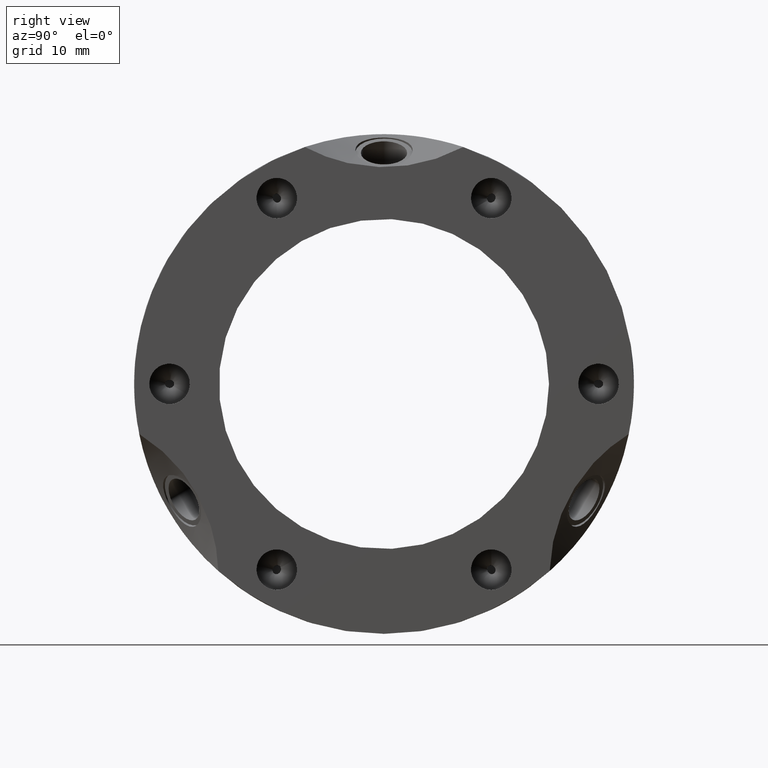
[diagram: clean part render]
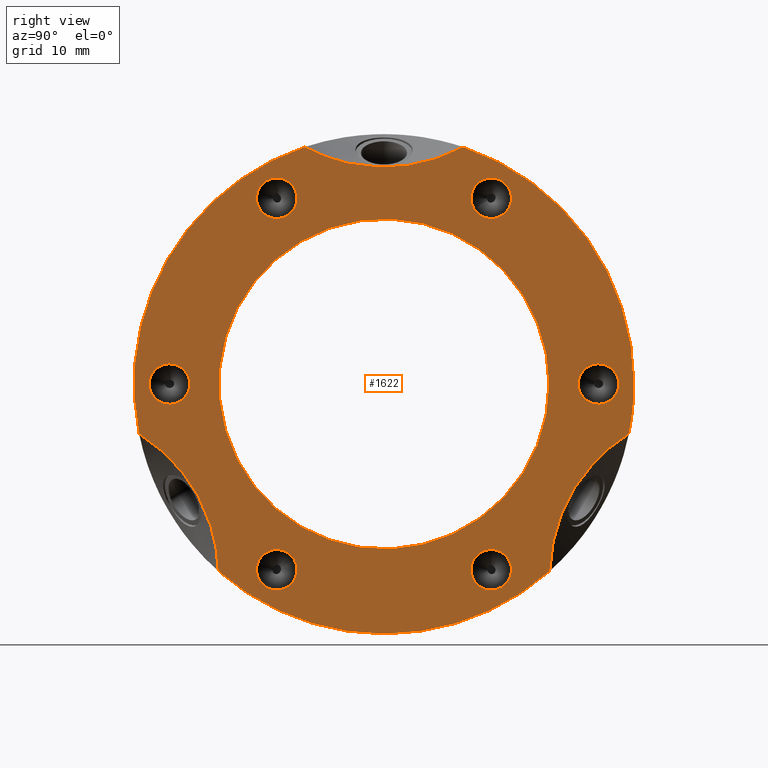
[diagram: same view with one face highlighted and labeled with its STEP entity id]
A machine part, right view. The second image highlights one B-rep face of the part: STEP entity #1622.
In plain terms, the highlighted planar face has unit normal (1, 0, 0).
Its self-contained STEP definition (entity closure, byte-faithful):
#131=CARTESIAN_POINT('',(19.999999999999993,9.513045381863465,18.627077936095983));
#132=VERTEX_POINT('',#131);
#133=CARTESIAN_POINT('',(19.999999999999993,11.375000000000009,19.702077936095979));
#134=DIRECTION('',(-1.0,0.0,0.0));
#135=DIRECTION('',(0.0,-0.866025403784439,-0.499999999999999));
#136=AXIS2_PLACEMENT_3D('',#133,#134,#135);
#137=CIRCLE('',#136,2.15);
#138=EDGE_CURVE('',#132,#132,#137,.T.);
#287=CARTESIAN_POINT('',(19.999999999999993,20.888045381863456,1.075));
#288=VERTEX_POINT('',#287);
#289=CARTESIAN_POINT('',(19.999999999999993,22.750000000000004,0.0));
#290=DIRECTION('',(-1.0,0.0,0.0));
#291=DIRECTION('',(0.0,-0.866025403784438,0.500000000000001));
#292=AXIS2_PLACEMENT_3D('',#289,#290,#291);
#293=CIRCLE('',#292,2.15);
#294=EDGE_CURVE('',#288,#288,#293,.T.);
#443=CARTESIAN_POINT('',(19.999999999999993,11.375000000000009,-17.55207793609598));
#444=VERTEX_POINT('',#443);
#445=CARTESIAN_POINT('',(19.999999999999993,11.375000000000011,-19.702077936095979));
#446=DIRECTION('',(-1.0,0.0,0.0));
#447=DIRECTION('',(0.0,0.0,1.0));
#448=AXIS2_PLACEMENT_3D('',#445,#446,#447);
#449=CIRCLE('',#448,2.15);
#450=EDGE_CURVE('',#444,#444,#449,.T.);
#599=CARTESIAN_POINT('',(19.999999999999993,-9.513045381863453,-18.627077936095983));
#600=VERTEX_POINT('',#599);
#601=CARTESIAN_POINT('',(19.999999999999993,-11.374999999999996,-19.702077936095986));
#602=DIRECTION('',(-1.0,0.0,0.0));
#603=DIRECTION('',(0.0,0.866025403784439,0.5));
#604=AXIS2_PLACEMENT_3D('',#601,#602,#603);
#605=CIRCLE('',#604,2.15);
#606=EDGE_CURVE('',#600,#600,#605,.T.);
#755=CARTESIAN_POINT('',(19.999999999999993,-20.888045381863456,-1.075000000000008));
#756=VERTEX_POINT('',#755);
#757=CARTESIAN_POINT('',(19.999999999999993,-22.750000000000004,-7.771561E-015));
#758=DIRECTION('',(-1.0,0.0,0.0));
#759=DIRECTION('',(0.0,0.866025403784439,-0.5));
#760=AXIS2_PLACEMENT_3D('',#757,#758,#759);
#761=CIRCLE('',#760,2.15);
#762=EDGE_CURVE('',#756,#756,#761,.T.);
#911=CARTESIAN_POINT('',(19.999999999999993,-11.375000000000011,17.552077936095976));
#912=VERTEX_POINT('',#911);
#913=CARTESIAN_POINT('',(19.999999999999993,-11.375000000000011,19.702077936095975));
#914=DIRECTION('',(-1.0,0.0,0.0));
#915=DIRECTION('',(0.0,0.0,-1.0));
#916=AXIS2_PLACEMENT_3D('',#913,#914,#915);
#917=CIRCLE('',#916,2.15);
#918=EDGE_CURVE('',#912,#912,#917,.T.);
#1137=CARTESIAN_POINT('',(19.999999999999993,17.568196461995893,-19.839568369113152));
#1138=VERTEX_POINT('',#1137);
#1139=CARTESIAN_POINT('',(19.999999999999996,25.965668438768141,-5.294720250207787));
#1140=VERTEX_POINT('',#1139);
#1141=CARTESIAN_POINT('',(19.999999999999993,39.918584287042094,-23.047005383792545));
#1142=DIRECTION('',(-1.0,0.0,0.0));
#1143=DIRECTION('',(0.0,-0.866025403784438,0.5));
#1144=AXIS2_PLACEMENT_3D('',#1141,#1142,#1143);
#1145=ELLIPSE('',#1144,23.094010767585043,19.999999999999996);
#1146=EDGE_CURVE('',#1138,#1140,#1145,.T.);
#1308=CARTESIAN_POINT('',(19.999999999999993,-25.965668438768144,-5.294720250207762));
#1309=VERTEX_POINT('',#1308);
#1310=CARTESIAN_POINT('',(19.999999999999993,-17.568196461995907,-19.839568369113145));
#1311=VERTEX_POINT('',#1310);
#1312=CARTESIAN_POINT('',(19.999999999999993,-39.918584287042108,-23.047005383792509));
#1313=DIRECTION('',(-1.0,0.0,0.0));
#1314=DIRECTION('',(0.0,0.866025403784439,0.5));
#1315=AXIS2_PLACEMENT_3D('',#1312,#1313,#1314);
#1316=ELLIPSE('',#1315,23.094010767585047,20.000000000000004);
#1317=EDGE_CURVE('',#1309,#1311,#1316,.T.);
#1387=CARTESIAN_POINT('',(19.999999999999993,0.0,0.0));
#1388=DIRECTION('',(1.0,0.0,0.0));
#1389=DIRECTION('',(0.0,1.0,0.0));
#1390=AXIS2_PLACEMENT_3D('',#1387,#1388,#1389);
#1391=CIRCLE('',#1390,26.500000000000004);
#1392=EDGE_CURVE('',#1311,#1138,#1391,.T.);
#1395=CARTESIAN_POINT('',(19.999999999999993,-8.397471976772245,25.134288619320916));
#1396=VERTEX_POINT('',#1395);
#1397=CARTESIAN_POINT('',(19.999999999999993,0.0,0.0));
#1398=DIRECTION('',(1.0,0.0,0.0));
#1399=DIRECTION('',(0.0,1.0,0.0));
#1400=AXIS2_PLACEMENT_3D('',#1397,#1398,#1399);
#1401=CIRCLE('',#1400,26.500000000000004);
#1402=EDGE_CURVE('',#1396,#1309,#1401,.T.);
#1404=CARTESIAN_POINT('',(19.999999999999993,8.397471976772245,25.134288619320916));
#1405=VERTEX_POINT('',#1404);
#1423=CARTESIAN_POINT('',(19.999999999999993,0.0,0.0));
#1424=DIRECTION('',(1.0,0.0,0.0));
#1425=DIRECTION('',(0.0,1.0,0.0));
#1426=AXIS2_PLACEMENT_3D('',#1423,#1424,#1425);
#1427=CIRCLE('',#1426,26.500000000000004);
#1428=EDGE_CURVE('',#1140,#1405,#1427,.T.);
#1566=CARTESIAN_POINT('',(19.999999999999993,0.0,46.094010767585047));
#1567=DIRECTION('',(-1.0,0.0,0.0));
#1568=DIRECTION('',(0.0,0.0,-1.0));
#1569=AXIS2_PLACEMENT_3D('',#1566,#1567,#1568);
#1570=ELLIPSE('',#1569,23.094010767585047,20.0);
#1571=EDGE_CURVE('',#1405,#1396,#1570,.T.);
#1580=CARTESIAN_POINT('',(19.999999999999993,22.0,0.0));
#1581=DIRECTION('',(1.0,0.0,0.0));
#1582=DIRECTION('',(0.0,0.0,-1.0));
#1583=AXIS2_PLACEMENT_3D('',#1580,#1581,#1582);
#1584=PLANE('',#1583);
#1585=ORIENTED_EDGE('',*,*,#1146,.T.);
#1586=ORIENTED_EDGE('',*,*,#1428,.T.);
#1587=ORIENTED_EDGE('',*,*,#1571,.T.);
#1588=ORIENTED_EDGE('',*,*,#1402,.T.);
#1589=ORIENTED_EDGE('',*,*,#1317,.T.);
#1590=ORIENTED_EDGE('',*,*,#1392,.T.);
#1591=EDGE_LOOP('',(#1585,#1586,#1587,#1588,#1589,#1590));
#1592=FACE_OUTER_BOUND('',#1591,.T.);
#1593=ORIENTED_EDGE('',*,*,#138,.T.);
#1594=EDGE_LOOP('',(#1593));
#1595=FACE_BOUND('',#1594,.T.);
#1596=ORIENTED_EDGE('',*,*,#294,.T.);
#1597=EDGE_LOOP('',(#1596));
#1598=FACE_BOUND('',#1597,.T.);
#1599=ORIENTED_EDGE('',*,*,#450,.T.);
#1600=EDGE_LOOP('',(#1599));
#1601=FACE_BOUND('',#1600,.T.);
#1602=ORIENTED_EDGE('',*,*,#606,.T.);
#1603=EDGE_LOOP('',(#1602));
#1604=FACE_BOUND('',#1603,.T.);
#1605=ORIENTED_EDGE('',*,*,#762,.T.);
#1606=EDGE_LOOP('',(#1605));
#1607=FACE_BOUND('',#1606,.T.);
#1608=ORIENTED_EDGE('',*,*,#918,.T.);
#1609=EDGE_LOOP('',(#1608));
#1610=FACE_BOUND('',#1609,.T.);
#1611=CARTESIAN_POINT('',(19.999999999999996,17.5,0.0));
#1612=VERTEX_POINT('',#1611);
#1613=CARTESIAN_POINT('',(19.999999999999996,0.0,0.0));
#1614=DIRECTION('',(1.0,0.0,0.0));
#1615=DIRECTION('',(0.0,1.0,0.0));
#1616=AXIS2_PLACEMENT_3D('',#1613,#1614,#1615);
#1617=CIRCLE('',#1616,17.5);
#1618=EDGE_CURVE('',#1612,#1612,#1617,.T.);
#1619=ORIENTED_EDGE('',*,*,#1618,.F.);
#1620=EDGE_LOOP('',(#1619));
#1621=FACE_BOUND('',#1620,.T.);
#1622=ADVANCED_FACE('',(#1592,#1595,#1598,#1601,#1604,#1607,#1610,#1621),#1584,.T.);